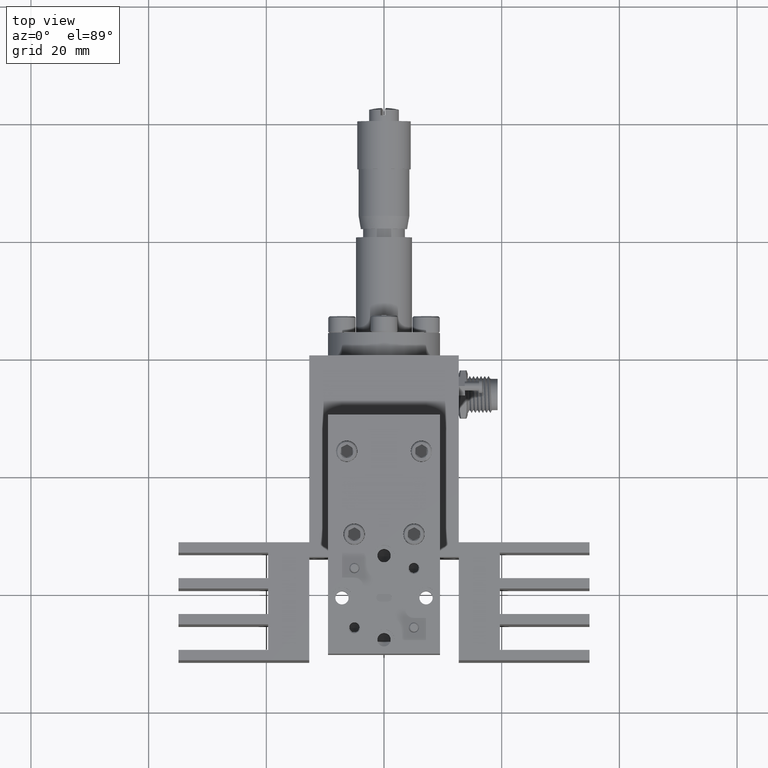
[diagram: clean part render]
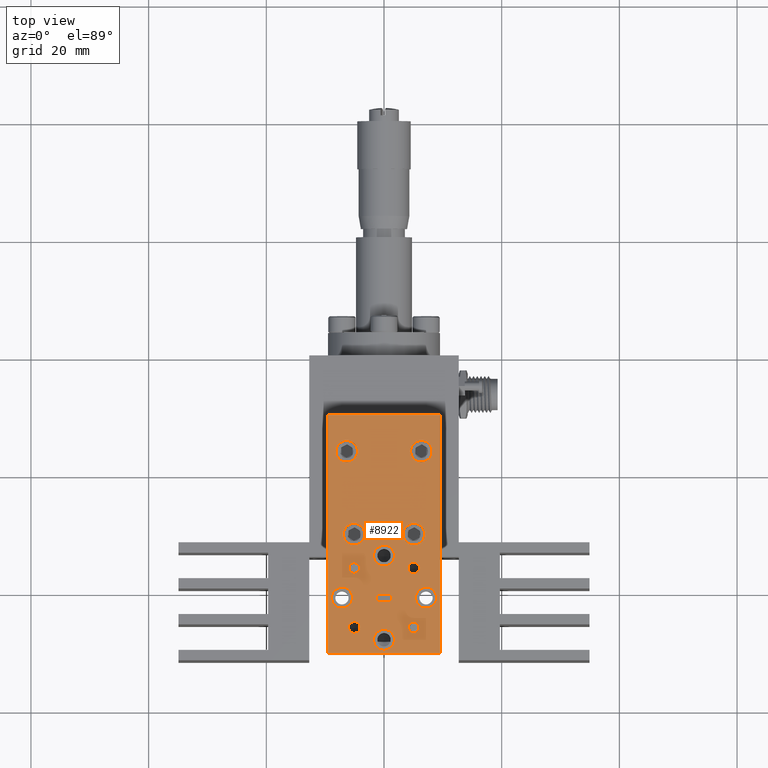
[diagram: same view with one face highlighted and labeled with its STEP entity id]
A machine part, top view. The second image highlights one B-rep face of the part: STEP entity #8922.
In plain terms, the highlighted planar face has unit normal (-0, 0, -1).
Its self-contained STEP definition (entity closure, byte-faithful):
#10 = CARTESIAN_POINT ( 'NONE',  ( 0.1603737822087167900, -0.6311262177912845300, 0.9999999999999995600 ) ) ;
#50 = DIRECTION ( 'NONE',  ( 1.217448058376478600E-016, -1.000000000000000000, -3.341435941113369400E-016 ) ) ;
#476 = FACE_BOUND ( 'NONE', #22975, .T. ) ;
#558 = EDGE_CURVE ( 'NONE', #5062, #10201, #36572, .T. ) ;
#710 = ORIENTED_EDGE ( 'NONE', *, *, #32624, .F. ) ;
#727 = ORIENTED_EDGE ( 'NONE', *, *, #15953, .F. ) ;
#779 = DIRECTION ( 'NONE',  ( 1.000000000000000000, 0.0000000000000000000, 0.0000000000000000000 ) ) ;
#1210 = DIRECTION ( 'NONE',  ( 1.007153418507994200E-016, -2.220446049250312600E-016, 1.000000000000000000 ) ) ;
#1367 = DIRECTION ( 'NONE',  ( -1.007153418507994200E-016, 2.220446049250312600E-016, -1.000000000000000000 ) ) ;
#1379 = CARTESIAN_POINT ( 'NONE',  ( 0.2812500000000003900, -0.8300000000000009600, 0.9999999999999995600 ) ) ;
#1436 = ORIENTED_EDGE ( 'NONE', *, *, #5059, .T. ) ;
#1485 = DIRECTION ( 'NONE',  ( 1.000000000000000000, 0.0000000000000000000, 0.0000000000000000000 ) ) ;
#1725 = VERTEX_POINT ( 'NONE', #20678 ) ;
#1741 = ORIENTED_EDGE ( 'NONE', *, *, #6452, .F. ) ;
#1743 = DIRECTION ( 'NONE',  ( 1.000000000000000000, 0.0000000000000000000, 0.0000000000000000000 ) ) ;
#1857 = FACE_BOUND ( 'NONE', #3536, .T. ) ;
#1878 = AXIS2_PLACEMENT_3D ( 'NONE', #6832, #12354, #779 ) ;
#1930 = DIRECTION ( 'NONE',  ( 1.007153418507994200E-016, -2.220446049250312600E-016, 1.000000000000000000 ) ) ;
#2238 = CIRCLE ( 'NONE', #4537, 0.07199999999999991100 ) ;
#2249 = CARTESIAN_POINT ( 'NONE',  ( -0.1988737822087160700, -0.6311262177912847500, 0.9999999999999996700 ) ) ;
#2454 = DIRECTION ( 'NONE',  ( 2.498001805406601700E-016, -1.000000000000000000, -3.341435941113369400E-016 ) ) ;
#2489 = EDGE_CURVE ( 'NONE', #18991, #31888, #19033, .T. ) ;
#2541 = CARTESIAN_POINT ( 'NONE',  ( -0.3219999999999999000, 0.1499999999999989400, 1.000000000000000000 ) ) ;
#2552 = EDGE_CURVE ( 'NONE', #25825, #29147, #14334, .T. ) ;
#2879 = CIRCLE ( 'NONE', #33497, 0.01999999999999999000 ) ;
#3176 = CIRCLE ( 'NONE', #23766, 0.03500000000000003800 ) ;
#3346 = CARTESIAN_POINT ( 'NONE',  ( 0.05000000000000037100, -0.8250000000000011800, 0.9999999999999995600 ) ) ;
#3381 = DIRECTION ( 'NONE',  ( 1.007153418507994200E-016, -2.220446049250312600E-016, 1.000000000000000000 ) ) ;
#3436 = VERTEX_POINT ( 'NONE', #6079 ) ;
#3468 = VERTEX_POINT ( 'NONE', #36088 ) ;
#3513 = DIRECTION ( 'NONE',  ( 1.000000000000000000, 0.0000000000000000000, 0.0000000000000000000 ) ) ;
#3536 = EDGE_LOOP ( 'NONE', ( #24670, #1741 ) ) ;
#3573 = VECTOR ( 'NONE', #5842, 39.37007874015748100 ) ;
#3619 = DIRECTION ( 'NONE',  ( 1.007153418507994200E-016, -2.220446049250312600E-016, 1.000000000000000000 ) ) ;
#3944 = DIRECTION ( 'NONE',  ( 1.007153418507994200E-016, -2.220446049250312600E-016, 1.000000000000000000 ) ) ;
#4036 = EDGE_LOOP ( 'NONE', ( #727, #27703 ) ) ;
#4039 = EDGE_CURVE ( 'NONE', #31888, #18991, #25940, .T. ) ;
#4064 = LINE ( 'NONE', #18811, #11550 ) ;
#4450 = VECTOR ( 'NONE', #10880, 39.37007874015748100 ) ;
#4537 = AXIS2_PLACEMENT_3D ( 'NONE', #38090, #37827, #20130 ) ;
#4648 = EDGE_CURVE ( 'NONE', #32023, #1725, #33454, .T. ) ;
#4791 = CARTESIAN_POINT ( 'NONE',  ( -0.2373737822087159400, -1.028873782208717500, 0.9999999999999995600 ) ) ;
#4937 = CARTESIAN_POINT ( 'NONE',  ( -0.2719999999999996300, -0.4050000000000011400, 0.9999999999999996700 ) ) ;
#5059 = EDGE_CURVE ( 'NONE', #28490, #15758, #12850, .T. ) ;
#5062 = VERTEX_POINT ( 'NONE', #14922 ) ;
#5163 = CARTESIAN_POINT ( 'NONE',  ( -0.3749999999999996700, -1.205000000000001400, 0.9999999999999994400 ) ) ;
#5255 = ORIENTED_EDGE ( 'NONE', *, *, #13025, .F. ) ;
#5426 = CIRCLE ( 'NONE', #19203, 0.07000000000000000700 ) ;
#5500 = CARTESIAN_POINT ( 'NONE',  ( 0.05000000000000037100, -0.8250000000000011800, 0.9999999999999995600 ) ) ;
#5682 = EDGE_LOOP ( 'NONE', ( #14316, #28614 ) ) ;
#5699 = EDGE_CURVE ( 'NONE', #33293, #16565, #35778, .T. ) ;
#5842 = DIRECTION ( 'NONE',  ( -1.000000000000000000, -2.498001805406602200E-016, 1.121922008783883600E-016 ) ) ;
#5926 = EDGE_CURVE ( 'NONE', #20438, #28740, #35739, .T. ) ;
#6079 = CARTESIAN_POINT ( 'NONE',  ( -0.2112499999999998000, -0.8300000000000012900, 0.9999999999999995600 ) ) ;
#6130 = CARTESIAN_POINT ( 'NONE',  ( 0.03000000000000037000, -0.8550000000000010900, 0.9999999999999995600 ) ) ;
#6198 = ORIENTED_EDGE ( 'NONE', *, *, #31604, .F. ) ;
#6284 = CIRCLE ( 'NONE', #26935, 0.07000000000000013200 ) ;
#6371 = VECTOR ( 'NONE', #8249, 39.37007874015748100 ) ;
#6377 = EDGE_CURVE ( 'NONE', #24644, #31378, #22755, .T. ) ;
#6452 = EDGE_CURVE ( 'NONE', #10877, #26238, #23155, .T. ) ;
#6674 = EDGE_CURVE ( 'NONE', #38056, #18733, #21298, .T. ) ;
#6785 = AXIS2_PLACEMENT_3D ( 'NONE', #1379, #34036, #16323 ) ;
#6832 = CARTESIAN_POINT ( 'NONE',  ( 0.1988737822087167700, -0.6311262177912845300, 0.9999999999999995600 ) ) ;
#6903 = CARTESIAN_POINT ( 'NONE',  ( -0.02999999999999963800, -0.8350000000000010700, 0.9999999999999995600 ) ) ;
#7379 = DIRECTION ( 'NONE',  ( 1.000000000000000000, 0.0000000000000000000, 0.0000000000000000000 ) ) ;
#7528 = FACE_BOUND ( 'NONE', #29118, .T. ) ;
#7570 = EDGE_CURVE ( 'NONE', #10328, #16682, #15617, .T. ) ;
#7643 = CIRCLE ( 'NONE', #34813, 0.03850000000000001300 ) ;
#7701 = VERTEX_POINT ( 'NONE', #19012 ) ;
#7722 = ORIENTED_EDGE ( 'NONE', *, *, #27087, .F. ) ;
#7789 = DIRECTION ( 'NONE',  ( 1.007153418507994200E-016, -2.220446049250312600E-016, 1.000000000000000000 ) ) ;
#7816 = EDGE_CURVE ( 'NONE', #3468, #17983, #21681, .T. ) ;
#8198 = EDGE_CURVE ( 'NONE', #16565, #10328, #2879, .T. ) ;
#8249 = DIRECTION ( 'NONE',  ( 1.000000000000000000, 2.498001805406602200E-016, -1.121922008783883600E-016 ) ) ;
#8393 = DIRECTION ( 'NONE',  ( 1.007153418507994200E-016, -2.220446049250312600E-016, 1.000000000000000000 ) ) ;
#8738 = CARTESIAN_POINT ( 'NONE',  ( 0.1638737822087167900, -1.028873782208717500, 0.9999999999999994400 ) ) ;
#8749 = CARTESIAN_POINT ( 'NONE',  ( 2.731847993664263200E-016, -0.4050000000000013000, 0.9999999999999996700 ) ) ;
#8887 = EDGE_CURVE ( 'NONE', #27596, #27111, #23921, .T. ) ;
#8891 = EDGE_CURVE ( 'NONE', #15758, #33293, #9869, .T. ) ;
#8922 = ADVANCED_FACE ( 'NONE', ( #32856, #1857, #14568, #16432, #476, #18763, #22538, #30970, #15516, #22976, #31455, #23467, #7528, #38501 ), #20825, .F. ) ;
#9091 = AXIS2_PLACEMENT_3D ( 'NONE', #19208, #34279, #22088 ) ;
#9481 = EDGE_CURVE ( 'NONE', #10785, #7701, #30927, .T. ) ;
#9869 = CIRCLE ( 'NONE', #30745, 0.02000000000000000000 ) ;
#9929 = DIRECTION ( 'NONE',  ( 1.000000000000000000, 0.0000000000000000000, 0.0000000000000000000 ) ) ;
#9971 = VECTOR ( 'NONE', #15152, 39.37007874015748100 ) ;
#9982 = DIRECTION ( 'NONE',  ( 1.000000000000000000, 2.371395827833564900E-016, 0.0000000000000000000 ) ) ;
#10028 = VERTEX_POINT ( 'NONE', #22640 ) ;
#10138 = CARTESIAN_POINT ( 'NONE',  ( -0.2499999999999999700, 0.1499999999999989400, 1.000000000000000000 ) ) ;
#10201 = VERTEX_POINT ( 'NONE', #4937 ) ;
#10328 = VERTEX_POINT ( 'NONE', #26806 ) ;
#10635 = DIRECTION ( 'NONE',  ( 1.000000000000000000, 2.371395827833565900E-016, 0.0000000000000000000 ) ) ;
#10725 = AXIS2_PLACEMENT_3D ( 'NONE', #15501, #22036, #9982 ) ;
#10785 = VERTEX_POINT ( 'NONE', #14457 ) ;
#10804 = DIRECTION ( 'NONE',  ( 1.000000000000000000, 0.0000000000000000000, 0.0000000000000000000 ) ) ;
#10877 = VERTEX_POINT ( 'NONE', #10 ) ;
#10880 = DIRECTION ( 'NONE',  ( -1.217448058376478600E-016, 1.000000000000000000, 3.341435941113369400E-016 ) ) ;
#10998 = DIRECTION ( 'NONE',  ( 1.000000000000000000, 0.0000000000000000000, 0.0000000000000000000 ) ) ;
#11001 = EDGE_CURVE ( 'NONE', #26238, #10877, #23807, .T. ) ;
#11034 = DIRECTION ( 'NONE',  ( 1.007153418507994200E-016, -2.220446049250312600E-016, 1.000000000000000000 ) ) ;
#11137 = CARTESIAN_POINT ( 'NONE',  ( -0.3749999999999998900, 0.3949999999999988000, 1.000000000000000000 ) ) ;
#11462 = DIRECTION ( 'NONE',  ( 1.007153418507994200E-016, -2.220446049250312600E-016, 1.000000000000000000 ) ) ;
#11550 = VECTOR ( 'NONE', #30887, 39.37007874015748100 ) ;
#12064 = EDGE_CURVE ( 'NONE', #31378, #10785, #4064, .T. ) ;
#12234 = CARTESIAN_POINT ( 'NONE',  ( 0.1780000000000003500, 0.1499999999999990800, 0.9999999999999998900 ) ) ;
#12263 = VERTEX_POINT ( 'NONE', #2541 ) ;
#12354 = DIRECTION ( 'NONE',  ( 1.007153418507994200E-016, -2.220446049250312600E-016, 1.000000000000000000 ) ) ;
#12448 = CARTESIAN_POINT ( 'NONE',  ( -0.06999999999999989600, -0.5487500000000010700, 0.9999999999999996700 ) ) ;
#12544 = EDGE_LOOP ( 'NONE', ( #23331, #13348 ) ) ;
#12667 = ORIENTED_EDGE ( 'NONE', *, *, #6377, .F. ) ;
#12797 = VECTOR ( 'NONE', #14816, 39.37007874015748100 ) ;
#12850 = LINE ( 'NONE', #5500, #33003 ) ;
#13025 = EDGE_CURVE ( 'NONE', #34822, #12263, #24137, .T. ) ;
#13348 = ORIENTED_EDGE ( 'NONE', *, *, #2489, .F. ) ;
#13353 = AXIS2_PLACEMENT_3D ( 'NONE', #19742, #7789, #10804 ) ;
#13362 = CARTESIAN_POINT ( 'NONE',  ( 0.1280000000000005900, -0.4050000000000010300, 0.9999999999999996700 ) ) ;
#13550 = CARTESIAN_POINT ( 'NONE',  ( -0.02999999999999963800, -0.8250000000000011800, 0.9999999999999995600 ) ) ;
#13606 = ORIENTED_EDGE ( 'NONE', *, *, #558, .F. ) ;
#13648 = DIRECTION ( 'NONE',  ( 1.007153418507994200E-016, -2.220446049250312600E-016, 1.000000000000000000 ) ) ;
#13770 = CARTESIAN_POINT ( 'NONE',  ( -0.2812499999999997800, -0.8300000000000012900, 0.9999999999999995600 ) ) ;
#14025 = DIRECTION ( 'NONE',  ( 1.000000000000000000, 0.0000000000000000000, 0.0000000000000000000 ) ) ;
#14316 = ORIENTED_EDGE ( 'NONE', *, *, #5926, .F. ) ;
#14334 = LINE ( 'NONE', #37761, #6371 ) ;
#14457 = CARTESIAN_POINT ( 'NONE',  ( 0.3750000000000001700, 0.3949999999999990700, 1.000000000000000000 ) ) ;
#14537 = DIRECTION ( 'NONE',  ( 1.000000000000000000, 0.0000000000000000000, 0.0000000000000000000 ) ) ;
#14568 = FACE_BOUND ( 'NONE', #32396, .T. ) ;
#14657 = DIRECTION ( 'NONE',  ( -1.000000000000000000, 0.0000000000000000000, 0.0000000000000000000 ) ) ;
#14751 = EDGE_CURVE ( 'NONE', #16682, #25825, #26254, .T. ) ;
#14816 = DIRECTION ( 'NONE',  ( -2.498001805406601700E-016, 1.000000000000000000, 3.341435941113369400E-016 ) ) ;
#14922 = CARTESIAN_POINT ( 'NONE',  ( -0.1280000000000000300, -0.4050000000000011400, 0.9999999999999996700 ) ) ;
#14937 = AXIS2_PLACEMENT_3D ( 'NONE', #8749, #29704, #35761 ) ;
#15152 = DIRECTION ( 'NONE',  ( -1.000000000000000000, -2.498001805406602200E-016, 1.121922008783883600E-016 ) ) ;
#15233 = AXIS2_PLACEMENT_3D ( 'NONE', #28971, #11034, #35026 ) ;
#15463 = ORIENTED_EDGE ( 'NONE', *, *, #8198, .T. ) ;
#15501 = CARTESIAN_POINT ( 'NONE',  ( 0.2500000000000002200, 0.1499999999999990800, 0.9999999999999998900 ) ) ;
#15516 = FACE_BOUND ( 'NONE', #4036, .T. ) ;
#15587 = DIRECTION ( 'NONE',  ( 1.000000000000000000, 0.0000000000000000000, 0.0000000000000000000 ) ) ;
#15617 = LINE ( 'NONE', #24661, #12797 ) ;
#15741 = DIRECTION ( 'NONE',  ( 1.000000000000000000, 0.0000000000000000000, 0.0000000000000000000 ) ) ;
#15758 = VERTEX_POINT ( 'NONE', #30640 ) ;
#15786 = EDGE_CURVE ( 'NONE', #22937, #29702, #34174, .T. ) ;
#15953 = EDGE_CURVE ( 'NONE', #1725, #32023, #2238, .T. ) ;
#16120 = CARTESIAN_POINT ( 'NONE',  ( -0.2499999999999999700, 0.1499999999999989400, 1.000000000000000000 ) ) ;
#16234 = EDGE_LOOP ( 'NONE', ( #27165, #20120 ) ) ;
#16323 = DIRECTION ( 'NONE',  ( 1.000000000000000000, 0.0000000000000000000, 0.0000000000000000000 ) ) ;
#16408 = EDGE_CURVE ( 'NONE', #12263, #34822, #27526, .T. ) ;
#16432 = FACE_BOUND ( 'NONE', #12544, .T. ) ;
#16463 = EDGE_CURVE ( 'NONE', #27111, #27596, #32236, .T. ) ;
#16565 = VERTEX_POINT ( 'NONE', #17029 ) ;
#16576 = DIRECTION ( 'NONE',  ( 1.007153418507994200E-016, -2.220446049250312600E-016, 1.000000000000000000 ) ) ;
#16678 = ORIENTED_EDGE ( 'NONE', *, *, #12064, .F. ) ;
#16682 = VERTEX_POINT ( 'NONE', #18486 ) ;
#16857 = CIRCLE ( 'NONE', #32046, 0.03500000000000003800 ) ;
#16924 = AXIS2_PLACEMENT_3D ( 'NONE', #25109, #1367, #1485 ) ;
#16999 = CARTESIAN_POINT ( 'NONE',  ( 3.813099770316609500E-016, -1.111250000000001200, 0.9999999999999994400 ) ) ;
#17029 = CARTESIAN_POINT ( 'NONE',  ( -0.02999999999999963800, -0.8550000000000010900, 0.9999999999999995600 ) ) ;
#17134 = ORIENTED_EDGE ( 'NONE', *, *, #33763, .T. ) ;
#17273 = VECTOR ( 'NONE', #50, 39.37007874015748100 ) ;
#17618 = AXIS2_PLACEMENT_3D ( 'NONE', #16999, #13648, #34601 ) ;
#17983 = VERTEX_POINT ( 'NONE', #37289 ) ;
#18390 = CARTESIAN_POINT ( 'NONE',  ( 0.3750000000000001700, 0.3949999999999990700, 1.000000000000000000 ) ) ;
#18486 = CARTESIAN_POINT ( 'NONE',  ( -0.04999999999999963500, -0.8250000000000011800, 0.9999999999999995600 ) ) ;
#18579 = CARTESIAN_POINT ( 'NONE',  ( -0.2812499999999997800, -0.8300000000000012900, 0.9999999999999995600 ) ) ;
#18587 = EDGE_CURVE ( 'NONE', #3436, #31871, #5426, .T. ) ;
#18661 = CARTESIAN_POINT ( 'NONE',  ( 0.2720000000000001900, -0.4050000000000010300, 0.9999999999999996700 ) ) ;
#18684 = DIRECTION ( 'NONE',  ( 1.000000000000000000, 0.0000000000000000000, 0.0000000000000000000 ) ) ;
#18733 = VERTEX_POINT ( 'NONE', #18661 ) ;
#18763 = FACE_BOUND ( 'NONE', #30321, .T. ) ;
#18811 = CARTESIAN_POINT ( 'NONE',  ( -0.3749999999999998900, 0.3949999999999988000, 1.000000000000000000 ) ) ;
#18865 = CARTESIAN_POINT ( 'NONE',  ( -0.1999999999999998400, -0.4050000000000011400, 0.9999999999999996700 ) ) ;
#18991 = VERTEX_POINT ( 'NONE', #34908 ) ;
#19012 = CARTESIAN_POINT ( 'NONE',  ( 0.3750000000000003900, -1.205000000000001200, 0.9999999999999994400 ) ) ;
#19033 = CIRCLE ( 'NONE', #29494, 0.03500000000000000300 ) ;
#19176 = DIRECTION ( 'NONE',  ( 1.007153418507994200E-016, -2.220446049250312600E-016, 1.000000000000000000 ) ) ;
#19203 = AXIS2_PLACEMENT_3D ( 'NONE', #13770, #1930, #14025 ) ;
#19208 = CARTESIAN_POINT ( 'NONE',  ( 0.2812500000000003900, -0.8300000000000009600, 0.9999999999999995600 ) ) ;
#19360 = EDGE_CURVE ( 'NONE', #10201, #5062, #38188, .T. ) ;
#19393 = DIRECTION ( 'NONE',  ( 1.000000000000000000, 0.0000000000000000000, 0.0000000000000000000 ) ) ;
#19396 = CARTESIAN_POINT ( 'NONE',  ( 0.3512500000000004000, -0.8300000000000009600, 0.9999999999999995600 ) ) ;
#19536 = LINE ( 'NONE', #32460, #3573 ) ;
#19742 = CARTESIAN_POINT ( 'NONE',  ( -0.1988737822087159300, -1.028873782208717500, 0.9999999999999995600 ) ) ;
#19881 = CARTESIAN_POINT ( 'NONE',  ( -0.1603737822087159300, -1.028873782208717500, 0.9999999999999995600 ) ) ;
#19927 = EDGE_CURVE ( 'NONE', #28740, #20438, #7643, .T. ) ;
#20035 = EDGE_CURVE ( 'NONE', #18733, #38056, #23578, .T. ) ;
#20081 = DIRECTION ( 'NONE',  ( 1.007153418507994200E-016, -2.220446049250312600E-016, 1.000000000000000000 ) ) ;
#20120 = ORIENTED_EDGE ( 'NONE', *, *, #16463, .F. ) ;
#20122 = DIRECTION ( 'NONE',  ( 1.000000000000000000, 0.0000000000000000000, 0.0000000000000000000 ) ) ;
#20130 = DIRECTION ( 'NONE',  ( 1.000000000000000000, 2.371395827833564900E-016, 0.0000000000000000000 ) ) ;
#20263 = ORIENTED_EDGE ( 'NONE', *, *, #8891, .T. ) ;
#20438 = VERTEX_POINT ( 'NONE', #19881 ) ;
#20678 = CARTESIAN_POINT ( 'NONE',  ( 0.3220000000000001200, 0.1499999999999991100, 0.9999999999999998900 ) ) ;
#20825 = PLANE ( 'NONE',  #14937 ) ;
#20942 = CARTESIAN_POINT ( 'NONE',  ( 2.407973754775395800E-016, -0.5487500000000010700, 0.9999999999999996700 ) ) ;
#21298 = CIRCLE ( 'NONE', #25159, 0.07199999999999980000 ) ;
#21356 = CARTESIAN_POINT ( 'NONE',  ( -0.1999999999999998400, -0.4050000000000011400, 0.9999999999999996700 ) ) ;
#21635 = EDGE_LOOP ( 'NONE', ( #13606, #30269 ) ) ;
#21681 = CIRCLE ( 'NONE', #17618, 0.07000000000000013200 ) ;
#21882 = AXIS2_PLACEMENT_3D ( 'NONE', #31629, #20081, #32135 ) ;
#22036 = DIRECTION ( 'NONE',  ( 1.007153418507994200E-016, -2.220446049250312600E-016, 1.000000000000000000 ) ) ;
#22088 = DIRECTION ( 'NONE',  ( 1.000000000000000000, 0.0000000000000000000, 0.0000000000000000000 ) ) ;
#22322 = CARTESIAN_POINT ( 'NONE',  ( -0.1988737822087159300, -1.028873782208717500, 0.9999999999999995600 ) ) ;
#22396 = CARTESIAN_POINT ( 'NONE',  ( 0.1988737822087168200, -1.028873782208717500, 0.9999999999999994400 ) ) ;
#22538 = FACE_BOUND ( 'NONE', #38927, .T. ) ;
#22640 = CARTESIAN_POINT ( 'NONE',  ( 0.2338737822087168500, -1.028873782208717500, 0.9999999999999994400 ) ) ;
#22740 = CIRCLE ( 'NONE', #9091, 0.06999999999999996500 ) ;
#22755 = LINE ( 'NONE', #11137, #4450 ) ;
#22937 = VERTEX_POINT ( 'NONE', #27664 ) ;
#22975 = EDGE_LOOP ( 'NONE', ( #710, #30611 ) ) ;
#22976 = FACE_BOUND ( 'NONE', #37523, .T. ) ;
#23101 = EDGE_LOOP ( 'NONE', ( #35588, #24969, #16678, #12667 ) ) ;
#23105 = CARTESIAN_POINT ( 'NONE',  ( -0.1638737822087160700, -0.6311262177912847500, 0.9999999999999996700 ) ) ;
#23155 = CIRCLE ( 'NONE', #30155, 0.03849999999999997900 ) ;
#23165 = EDGE_LOOP ( 'NONE', ( #24467, #24496 ) ) ;
#23331 = ORIENTED_EDGE ( 'NONE', *, *, #4039, .F. ) ;
#23467 = FACE_BOUND ( 'NONE', #23165, .T. ) ;
#23530 = CIRCLE ( 'NONE', #16924, 0.02000000000000000000 ) ;
#23578 = CIRCLE ( 'NONE', #15233, 0.07199999999999980000 ) ;
#23766 = AXIS2_PLACEMENT_3D ( 'NONE', #27612, #36674, #18684 ) ;
#23807 = CIRCLE ( 'NONE', #1878, 0.03849999999999997900 ) ;
#23818 = AXIS2_PLACEMENT_3D ( 'NONE', #13550, #37669, #7379 ) ;
#23921 = CIRCLE ( 'NONE', #28711, 0.07000000000000013200 ) ;
#24137 = CIRCLE ( 'NONE', #26570, 0.07199999999999987000 ) ;
#24324 = CARTESIAN_POINT ( 'NONE',  ( 3.813099770316609500E-016, -1.111250000000001200, 0.9999999999999994400 ) ) ;
#24467 = ORIENTED_EDGE ( 'NONE', *, *, #20035, .F. ) ;
#24496 = ORIENTED_EDGE ( 'NONE', *, *, #6674, .F. ) ;
#24644 = VERTEX_POINT ( 'NONE', #5163 ) ;
#24661 = CARTESIAN_POINT ( 'NONE',  ( -0.04999999999999963500, -0.8250000000000011800, 0.9999999999999995600 ) ) ;
#24670 = ORIENTED_EDGE ( 'NONE', *, *, #11001, .F. ) ;
#24701 = AXIS2_PLACEMENT_3D ( 'NONE', #21356, #3381, #15587 ) ;
#24722 = DIRECTION ( 'NONE',  ( 1.000000000000000000, 0.0000000000000000000, 0.0000000000000000000 ) ) ;
#24775 = DIRECTION ( 'NONE',  ( 1.000000000000000000, 2.371395827833565900E-016, 0.0000000000000000000 ) ) ;
#24832 = CARTESIAN_POINT ( 'NONE',  ( 0.2373737822087167400, -0.6311262177912845300, 0.9999999999999995600 ) ) ;
#24969 = ORIENTED_EDGE ( 'NONE', *, *, #9481, .F. ) ;
#24988 = AXIS2_PLACEMENT_3D ( 'NONE', #18865, #3944, #15741 ) ;
#25040 = DIRECTION ( 'NONE',  ( 1.007153418507994200E-016, -2.220446049250312600E-016, 1.000000000000000000 ) ) ;
#25109 = CARTESIAN_POINT ( 'NONE',  ( 0.03000000000000037000, -0.8250000000000011800, 0.9999999999999995600 ) ) ;
#25159 = AXIS2_PLACEMENT_3D ( 'NONE', #31671, #16576, #1743 ) ;
#25721 = ORIENTED_EDGE ( 'NONE', *, *, #5699, .T. ) ;
#25825 = VERTEX_POINT ( 'NONE', #28506 ) ;
#25940 = CIRCLE ( 'NONE', #31072, 0.03500000000000000300 ) ;
#26063 = DIRECTION ( 'NONE',  ( 1.007153418507994200E-016, -2.220446049250312600E-016, 1.000000000000000000 ) ) ;
#26079 = CARTESIAN_POINT ( 'NONE',  ( 0.07000000000000036700, -0.5487500000000010700, 0.9999999999999996700 ) ) ;
#26238 = VERTEX_POINT ( 'NONE', #24832 ) ;
#26254 = CIRCLE ( 'NONE', #23818, 0.01999999999999999000 ) ;
#26309 = CARTESIAN_POINT ( 'NONE',  ( 0.03000000000000037000, -0.8350000000000010700, 0.9999999999999995600 ) ) ;
#26329 = CARTESIAN_POINT ( 'NONE',  ( 0.1988737822087167700, -0.6311262177912845300, 0.9999999999999995600 ) ) ;
#26467 = CARTESIAN_POINT ( 'NONE',  ( -0.3749999999999998900, 0.3949999999999988000, 1.000000000000000000 ) ) ;
#26501 = CARTESIAN_POINT ( 'NONE',  ( -0.3512499999999998400, -0.8300000000000012900, 0.9999999999999995600 ) ) ;
#26562 = DIRECTION ( 'NONE',  ( -1.007153418507994200E-016, 2.220446049250312600E-016, -1.000000000000000000 ) ) ;
#26570 = AXIS2_PLACEMENT_3D ( 'NONE', #16120, #25040, #24775 ) ;
#26806 = CARTESIAN_POINT ( 'NONE',  ( -0.04999999999999962800, -0.8350000000000010700, 0.9999999999999995600 ) ) ;
#26935 = AXIS2_PLACEMENT_3D ( 'NONE', #24324, #3619, #24722 ) ;
#27087 = EDGE_CURVE ( 'NONE', #31871, #3436, #30971, .T. ) ;
#27111 = VERTEX_POINT ( 'NONE', #12448 ) ;
#27165 = ORIENTED_EDGE ( 'NONE', *, *, #8887, .F. ) ;
#27247 = DIRECTION ( 'NONE',  ( 1.007153418507994200E-016, -2.220446049250312600E-016, 1.000000000000000000 ) ) ;
#27526 = CIRCLE ( 'NONE', #35949, 0.07199999999999987000 ) ;
#27596 = VERTEX_POINT ( 'NONE', #26079 ) ;
#27612 = CARTESIAN_POINT ( 'NONE',  ( 0.1988737822087168200, -1.028873782208717500, 0.9999999999999994400 ) ) ;
#27664 = CARTESIAN_POINT ( 'NONE',  ( 0.2112500000000004100, -0.8300000000000009600, 0.9999999999999995600 ) ) ;
#27703 = ORIENTED_EDGE ( 'NONE', *, *, #4648, .F. ) ;
#27869 = DIRECTION ( 'NONE',  ( -1.007153418507994200E-016, 2.220446049250312600E-016, -1.000000000000000000 ) ) ;
#28309 = VERTEX_POINT ( 'NONE', #8738 ) ;
#28490 = VERTEX_POINT ( 'NONE', #3346 ) ;
#28506 = CARTESIAN_POINT ( 'NONE',  ( -0.02999999999999964200, -0.8050000000000011600, 0.9999999999999995600 ) ) ;
#28520 = ORIENTED_EDGE ( 'NONE', *, *, #14751, .T. ) ;
#28614 = ORIENTED_EDGE ( 'NONE', *, *, #19927, .F. ) ;
#28711 = AXIS2_PLACEMENT_3D ( 'NONE', #20942, #38531, #14537 ) ;
#28740 = VERTEX_POINT ( 'NONE', #4791 ) ;
#28776 = ORIENTED_EDGE ( 'NONE', *, *, #18587, .F. ) ;
#28971 = CARTESIAN_POINT ( 'NONE',  ( 0.2000000000000004000, -0.4050000000000010300, 0.9999999999999996700 ) ) ;
#29118 = EDGE_LOOP ( 'NONE', ( #36575, #28520, #37240, #17134, #1436, #20263, #25721, #15463 ) ) ;
#29147 = VERTEX_POINT ( 'NONE', #34110 ) ;
#29463 = ORIENTED_EDGE ( 'NONE', *, *, #34805, .F. ) ;
#29466 = DIRECTION ( 'NONE',  ( 1.000000000000000000, 0.0000000000000000000, 0.0000000000000000000 ) ) ;
#29494 = AXIS2_PLACEMENT_3D ( 'NONE', #35256, #26063, #10998 ) ;
#29702 = VERTEX_POINT ( 'NONE', #19396 ) ;
#29704 = DIRECTION ( 'NONE',  ( -1.121922008783884100E-016, 2.220446049250312800E-016, -1.000000000000000000 ) ) ;
#30155 = AXIS2_PLACEMENT_3D ( 'NONE', #26329, #8393, #29466 ) ;
#30269 = ORIENTED_EDGE ( 'NONE', *, *, #19360, .F. ) ;
#30321 = EDGE_LOOP ( 'NONE', ( #28776, #7722 ) ) ;
#30610 = ORIENTED_EDGE ( 'NONE', *, *, #16408, .F. ) ;
#30611 = ORIENTED_EDGE ( 'NONE', *, *, #7816, .F. ) ;
#30640 = CARTESIAN_POINT ( 'NONE',  ( 0.05000000000000037700, -0.8350000000000010700, 0.9999999999999995600 ) ) ;
#30745 = AXIS2_PLACEMENT_3D ( 'NONE', #26309, #26562, #14657 ) ;
#30887 = DIRECTION ( 'NONE',  ( 1.000000000000000000, 2.498001805406602200E-016, -1.121922008783883600E-016 ) ) ;
#30927 = LINE ( 'NONE', #18390, #17273 ) ;
#30970 = FACE_BOUND ( 'NONE', #16234, .T. ) ;
#30971 = CIRCLE ( 'NONE', #32116, 0.07000000000000000700 ) ;
#30998 = ORIENTED_EDGE ( 'NONE', *, *, #35323, .F. ) ;
#31072 = AXIS2_PLACEMENT_3D ( 'NONE', #2249, #11462, #20122 ) ;
#31222 = CARTESIAN_POINT ( 'NONE',  ( 0.03000000000000038100, -0.8550000000000010900, 0.9999999999999995600 ) ) ;
#31378 = VERTEX_POINT ( 'NONE', #26467 ) ;
#31455 = FACE_BOUND ( 'NONE', #21635, .T. ) ;
#31604 = EDGE_CURVE ( 'NONE', #29702, #22937, #22740, .T. ) ;
#31629 = CARTESIAN_POINT ( 'NONE',  ( 2.407973754775395800E-016, -0.5487500000000010700, 0.9999999999999996700 ) ) ;
#31671 = CARTESIAN_POINT ( 'NONE',  ( 0.2000000000000004000, -0.4050000000000010300, 0.9999999999999996700 ) ) ;
#31871 = VERTEX_POINT ( 'NONE', #26501 ) ;
#31888 = VERTEX_POINT ( 'NONE', #23105 ) ;
#32023 = VERTEX_POINT ( 'NONE', #12234 ) ;
#32046 = AXIS2_PLACEMENT_3D ( 'NONE', #22396, #34846, #19393 ) ;
#32116 = AXIS2_PLACEMENT_3D ( 'NONE', #18579, #27247, #3513 ) ;
#32135 = DIRECTION ( 'NONE',  ( 1.000000000000000000, 0.0000000000000000000, 0.0000000000000000000 ) ) ;
#32236 = CIRCLE ( 'NONE', #21882, 0.07000000000000013200 ) ;
#32396 = EDGE_LOOP ( 'NONE', ( #30998, #29463 ) ) ;
#32460 = CARTESIAN_POINT ( 'NONE',  ( -0.3749999999999996700, -1.205000000000001400, 0.9999999999999994400 ) ) ;
#32624 = EDGE_CURVE ( 'NONE', #17983, #3468, #6284, .T. ) ;
#32856 = FACE_BOUND ( 'NONE', #5682, .T. ) ;
#33003 = VECTOR ( 'NONE', #2454, 39.37007874015748100 ) ;
#33293 = VERTEX_POINT ( 'NONE', #31222 ) ;
#33454 = CIRCLE ( 'NONE', #10725, 0.07199999999999991100 ) ;
#33497 = AXIS2_PLACEMENT_3D ( 'NONE', #6903, #27869, #9929 ) ;
#33763 = EDGE_CURVE ( 'NONE', #29147, #28490, #23530, .T. ) ;
#34036 = DIRECTION ( 'NONE',  ( 1.007153418507994200E-016, -2.220446049250312600E-016, 1.000000000000000000 ) ) ;
#34110 = CARTESIAN_POINT ( 'NONE',  ( 0.03000000000000036700, -0.8050000000000011600, 0.9999999999999995600 ) ) ;
#34174 = CIRCLE ( 'NONE', #6785, 0.06999999999999996500 ) ;
#34279 = DIRECTION ( 'NONE',  ( 1.007153418507994200E-016, -2.220446049250312600E-016, 1.000000000000000000 ) ) ;
#34601 = DIRECTION ( 'NONE',  ( 1.000000000000000000, 0.0000000000000000000, 0.0000000000000000000 ) ) ;
#34805 = EDGE_CURVE ( 'NONE', #28309, #10028, #16857, .T. ) ;
#34813 = AXIS2_PLACEMENT_3D ( 'NONE', #22322, #1210, #37416 ) ;
#34822 = VERTEX_POINT ( 'NONE', #37361 ) ;
#34846 = DIRECTION ( 'NONE',  ( 1.007153418507994200E-016, -2.220446049250312600E-016, 1.000000000000000000 ) ) ;
#34908 = CARTESIAN_POINT ( 'NONE',  ( -0.2338737822087160700, -0.6311262177912847500, 0.9999999999999996700 ) ) ;
#35026 = DIRECTION ( 'NONE',  ( 1.000000000000000000, 0.0000000000000000000, 0.0000000000000000000 ) ) ;
#35256 = CARTESIAN_POINT ( 'NONE',  ( -0.1988737822087160700, -0.6311262177912847500, 0.9999999999999996700 ) ) ;
#35323 = EDGE_CURVE ( 'NONE', #10028, #28309, #3176, .T. ) ;
#35588 = ORIENTED_EDGE ( 'NONE', *, *, #36607, .F. ) ;
#35739 = CIRCLE ( 'NONE', #13353, 0.03850000000000001300 ) ;
#35761 = DIRECTION ( 'NONE',  ( -1.000000000000000000, -2.498001805406602200E-016, 1.121922008783883600E-016 ) ) ;
#35778 = LINE ( 'NONE', #6130, #9971 ) ;
#35949 = AXIS2_PLACEMENT_3D ( 'NONE', #10138, #19176, #10635 ) ;
#36088 = CARTESIAN_POINT ( 'NONE',  ( -0.06999999999999974300, -1.111250000000001200, 0.9999999999999994400 ) ) ;
#36572 = CIRCLE ( 'NONE', #24701, 0.07199999999999980000 ) ;
#36575 = ORIENTED_EDGE ( 'NONE', *, *, #7570, .T. ) ;
#36607 = EDGE_CURVE ( 'NONE', #7701, #24644, #19536, .T. ) ;
#36674 = DIRECTION ( 'NONE',  ( 1.007153418507994200E-016, -2.220446049250312600E-016, 1.000000000000000000 ) ) ;
#37240 = ORIENTED_EDGE ( 'NONE', *, *, #2552, .T. ) ;
#37289 = CARTESIAN_POINT ( 'NONE',  ( 0.07000000000000052000, -1.111250000000001200, 0.9999999999999994400 ) ) ;
#37361 = CARTESIAN_POINT ( 'NONE',  ( -0.1780000000000001000, 0.1499999999999989700, 1.000000000000000000 ) ) ;
#37416 = DIRECTION ( 'NONE',  ( 1.000000000000000000, 0.0000000000000000000, 0.0000000000000000000 ) ) ;
#37523 = EDGE_LOOP ( 'NONE', ( #5255, #30610 ) ) ;
#37669 = DIRECTION ( 'NONE',  ( -1.007153418507994200E-016, 2.220446049250312600E-016, -1.000000000000000000 ) ) ;
#37761 = CARTESIAN_POINT ( 'NONE',  ( 0.03000000000000036700, -0.8050000000000011600, 0.9999999999999995600 ) ) ;
#37827 = DIRECTION ( 'NONE',  ( 1.007153418507994200E-016, -2.220446049250312600E-016, 1.000000000000000000 ) ) ;
#38023 = ORIENTED_EDGE ( 'NONE', *, *, #15786, .F. ) ;
#38056 = VERTEX_POINT ( 'NONE', #13362 ) ;
#38090 = CARTESIAN_POINT ( 'NONE',  ( 0.2500000000000002200, 0.1499999999999990800, 0.9999999999999998900 ) ) ;
#38188 = CIRCLE ( 'NONE', #24988, 0.07199999999999980000 ) ;
#38501 = FACE_OUTER_BOUND ( 'NONE', #23101, .T. ) ;
#38531 = DIRECTION ( 'NONE',  ( 1.007153418507994200E-016, -2.220446049250312600E-016, 1.000000000000000000 ) ) ;
#38927 = EDGE_LOOP ( 'NONE', ( #6198, #38023 ) ) ;